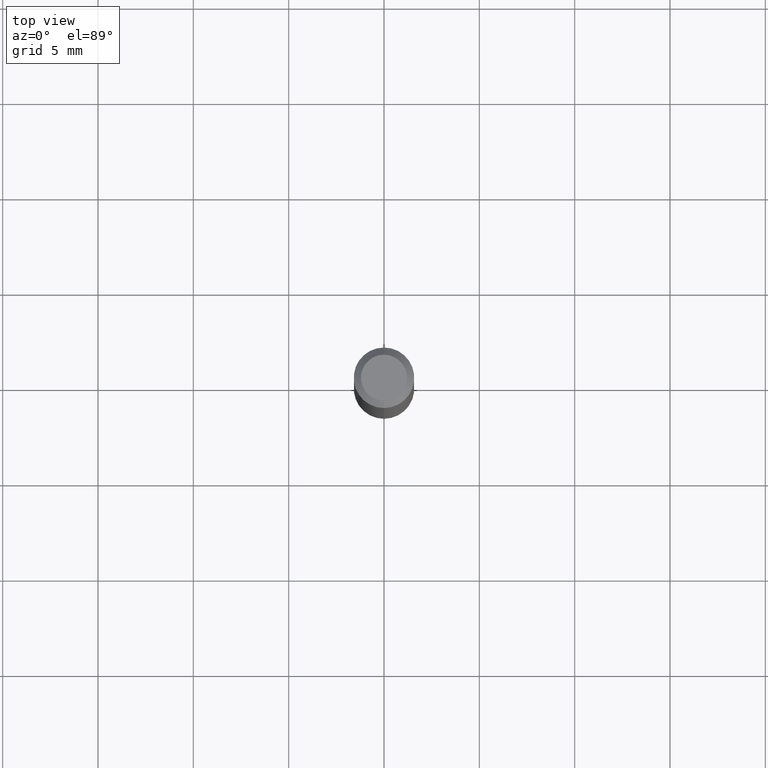
[diagram: clean part render]
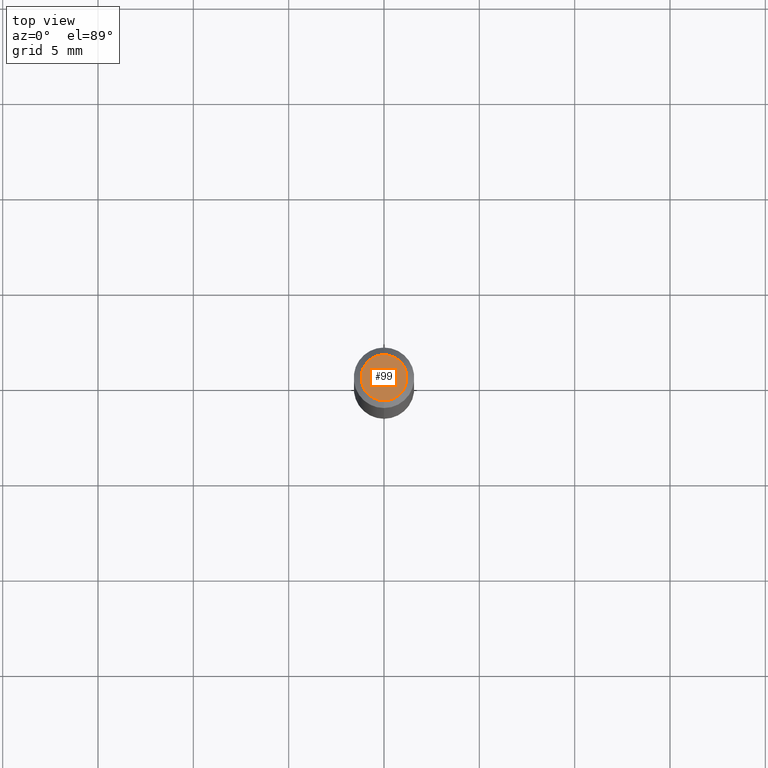
[diagram: same view with one face highlighted and labeled with its STEP entity id]
A machine part, top view. The second image highlights one B-rep face of the part: STEP entity #99.
In plain terms, the highlighted planar face has unit normal (0, -0, -1).
Its self-contained STEP definition (entity closure, byte-faithful):
#23 = CARTESIAN_POINT ( 'NONE',  ( 2.166514312515301841E-46, -3.093244288951834296E-32, -8.859352072356121388E-18 ) ) ;
#24 = AXIS2_PLACEMENT_3D ( 'NONE', #238, #371, #204 ) ;
#40 = CIRCLE ( 'NONE', #57, 0.04749999999999999362 ) ;
#57 = AXIS2_PLACEMENT_3D ( 'NONE', #23, #142, #107 ) ;
#71 = CIRCLE ( 'NONE', #24, 0.04749999999999999362 ) ;
#94 = DIRECTION ( 'NONE',  ( 6.982962677686265922E-15, 1.000000000000000000, -3.491501707674197965E-15 ) ) ;
#99 = ADVANCED_FACE ( 'NONE', ( #130 ), #387, .F. ) ;
#107 = DIRECTION ( 'NONE',  ( -6.982962677686266711E-15, -1.000000000000000000, 3.491501707674198359E-15 ) ) ;
#130 = FACE_OUTER_BOUND ( 'NONE', #267, .T. ) ;
#142 = DIRECTION ( 'NONE',  ( -2.445454582706434094E-29, 3.491501707674197965E-15, 1.000000000000000000 ) ) ;
#175 = CARTESIAN_POINT ( 'NONE',  ( 3.316907271900976096E-16, 0.04749999999999999362, -1.702760071507024560E-16 ) ) ;
#199 = AXIS2_PLACEMENT_3D ( 'NONE', #175, #491, #94 ) ;
#204 = DIRECTION ( 'NONE',  ( -6.982962677686266711E-15, -1.000000000000000000, 3.491501707674198359E-15 ) ) ;
#238 = CARTESIAN_POINT ( 'NONE',  ( 2.166514312515301841E-46, -3.093244288951834296E-32, -8.859352072356121388E-18 ) ) ;
#240 = CARTESIAN_POINT ( 'NONE',  ( 3.840629472727447874E-16, 0.04749999999999999362, -1.747056831868805136E-16 ) ) ;
#250 = CARTESIAN_POINT ( 'NONE',  ( -3.773273898774340269E-16, -0.04749999999999999362, 1.569869790421682832E-16 ) ) ;
#267 = EDGE_LOOP ( 'NONE', ( #283, #506 ) ) ;
#283 = ORIENTED_EDGE ( 'NONE', *, *, #309, .T. ) ;
#309 = EDGE_CURVE ( 'NONE', #377, #470, #40, .T. ) ;
#349 = EDGE_CURVE ( 'NONE', #470, #377, #71, .T. ) ;
#371 = DIRECTION ( 'NONE',  ( -2.445454582706434094E-29, 3.491501707674197965E-15, 1.000000000000000000 ) ) ;
#377 = VERTEX_POINT ( 'NONE', #240 ) ;
#387 = PLANE ( 'NONE',  #199 ) ;
#470 = VERTEX_POINT ( 'NONE', #250 ) ;
#491 = DIRECTION ( 'NONE',  ( 2.445454582706433533E-29, -3.491501707674197965E-15, -1.000000000000000000 ) ) ;
#506 = ORIENTED_EDGE ( 'NONE', *, *, #349, .T. ) ;